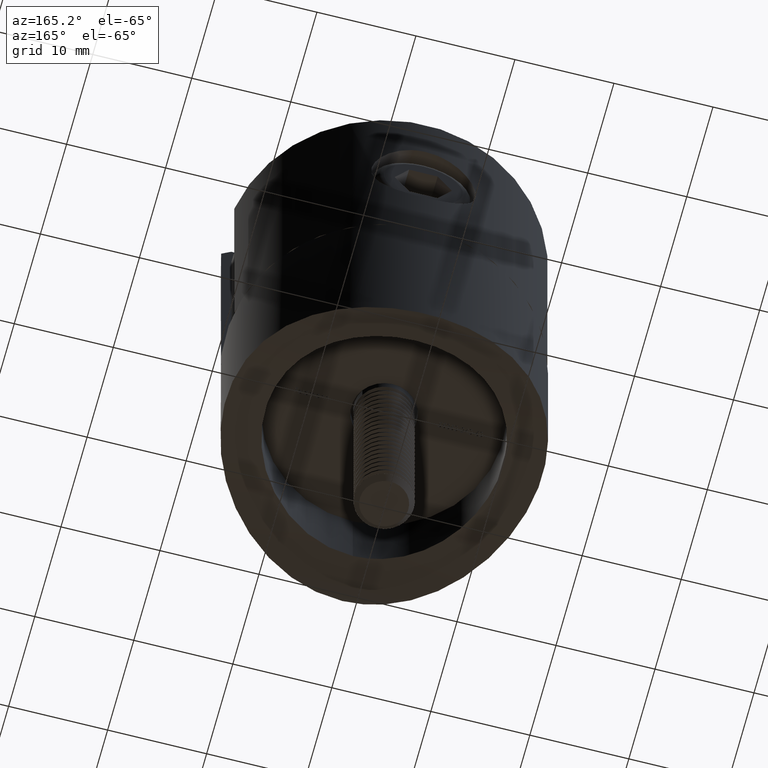
[diagram: clean part render]
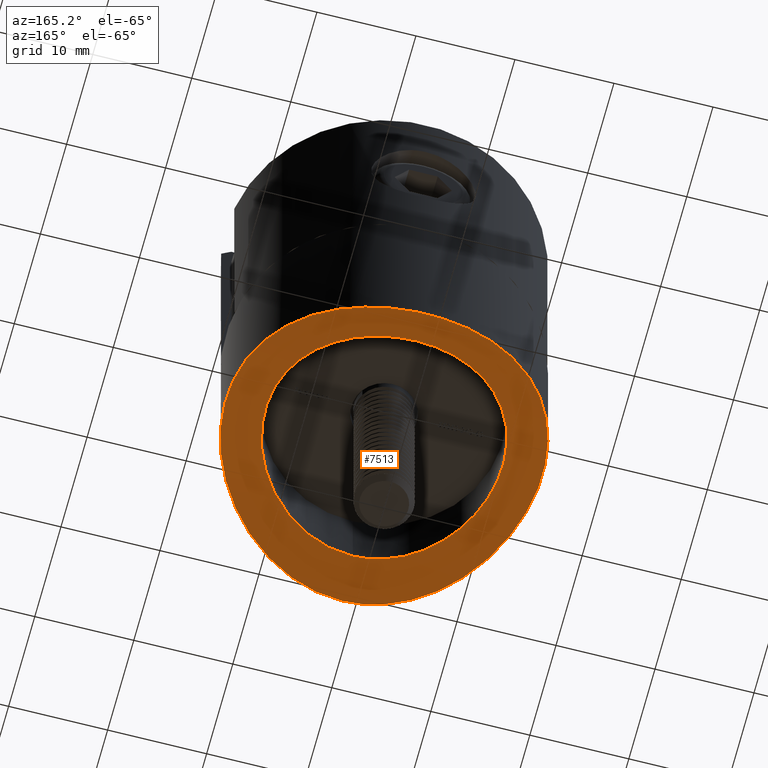
[diagram: same view with one face highlighted and labeled with its STEP entity id]
A machine part, auxiliary view. The second image highlights one B-rep face of the part: STEP entity #7513.
In plain terms, the highlighted cylindrical surface (partial cylindrical patch) has radius 30.15 mm, axis along (1, 0, 0).
Its self-contained STEP definition (entity closure, byte-faithful):
#4 = CARTESIAN_POINT ( 'NONE',  ( 4.987686912832513642, 10.92131578222722155, -2.047090563307750521 ) ) ;
#53 = FACE_OUTER_BOUND ( 'NONE', #1194, .T. ) ;
#77 = CARTESIAN_POINT ( 'NONE',  ( -0.7725920073445992076, 11.98168863400033857, -2.482990585800947336 ) ) ;
#257 = CARTESIAN_POINT ( 'NONE',  ( 4.198435893910748895, -15.44843400711653203, -4.257895014907222553 ) ) ;
#271 = CARTESIAN_POINT ( 'NONE',  ( -7.010991027877740756, -9.746609748862354650, -1.617938087989101659 ) ) ;
#389 = CARTESIAN_POINT ( 'NONE',  ( 2.134750117507572043, -15.89203472333664990, -4.527243523792710000 ) ) ;
#460 = CARTESIAN_POINT ( 'NONE',  ( 8.085586332512241015, 13.84566076334108864, -3.359357152009605496 ) ) ;
#527 = CARTESIAN_POINT ( 'NONE',  ( 12.97348780974006566, -9.378523343156295766, -1.492229447920222940 ) ) ;
#598 = CARTESIAN_POINT ( 'NONE',  ( 14.94273316656973094, -5.743356605367529788, -0.5480243328852349993 ) ) ;
#654 = CARTESIAN_POINT ( 'NONE',  ( 10.59754280818636119, 12.03077421143807335, -2.493298082391059545 ) ) ;
#732 = CARTESIAN_POINT ( 'NONE',  ( 15.88870023188751546, -2.161246617080414101, -0.05945806790660285168 ) ) ;
#1038 = CARTESIAN_POINT ( 'NONE',  ( 11.58754901106626356, -3.144040531877593025, -0.1619639574629034573 ) ) ;
#1162 = CARTESIAN_POINT ( 'NONE',  ( 2.745982449512750723, -11.68822410790023092, -2.357645131477205780 ) ) ;
#1194 = EDGE_LOOP ( 'NONE', ( #13048 ) ) ;
#1304 = CARTESIAN_POINT ( 'NONE',  ( -10.76129999144759353, -5.324383719730294118, -0.4717597106218170966 ) ) ;
#1435 = CARTESIAN_POINT ( 'NONE',  ( 9.753008548260295285, 7.002150436307593928, -0.8225009920806016783 ) ) ;
#1482 = EDGE_CURVE ( 'NONE', #4738, #4738, #19226, .T. ) ;
#1503 = CARTESIAN_POINT ( 'NONE',  ( -10.74784757159861925, 5.351446329594616635, -0.4766383172247924405 ) ) ;
#1571 = CARTESIAN_POINT ( 'NONE',  ( -11.83943307401098366, 1.995884954524046018, -0.06363305351737949533 ) ) ;
#2018 = CARTESIAN_POINT ( 'NONE',  ( 11.68239266804464371, 10.94456769242637328, -2.053888431004975423 ) ) ;
#2090 = CARTESIAN_POINT ( 'NONE',  ( 15.14519074717372149, 5.186800351054912106, -0.4450899824766906820 ) ) ;
#2160 = CARTESIAN_POINT ( 'NONE',  ( -8.032525227709426119, 13.87594563035724349, -3.375231095988488139 ) ) ;
#2226 = CARTESIAN_POINT ( 'NONE',  ( -15.97661758998877524, -1.017952428213681815, -0.01243452599184548257 ) ) ;
#2297 = CARTESIAN_POINT ( 'NONE',  ( 7.179271993898176163, 14.33635146221261536, -3.622562466884024612 ) ) ;
#2551 = CARTESIAN_POINT ( 'NONE',  ( -0.5394925263346930233, -15.99999999999999645, -4.595695078910871700 ) ) ;
#2594 = DIRECTION ( 'NONE',  ( 1.000000000000000000, -0.000000000000000000, -0.000000000000000000 ) ) ;
#2611 = CARTESIAN_POINT ( 'NONE',  ( -1.078560265351375724, -15.97265067711983733, -4.578511928934581476 ) ) ;
#2794 = CARTESIAN_POINT ( 'NONE',  ( 5.345823586510357828, -10.77207880563741504, -1.988139923124309094 ) ) ;
#2926 = CARTESIAN_POINT ( 'NONE',  ( -11.59313387451377864, -3.123250369471831878, -0.1598021065957393183 ) ) ;
#2998 = CARTESIAN_POINT ( 'NONE',  ( 6.030978729205838107, 10.38176652630970231, -1.843096584256991743 ) ) ;
#3040 = AXIS2_PLACEMENT_3D ( 'NONE', #9137, #2594, #7975 ) ;
#3061 = CARTESIAN_POINT ( 'NONE',  ( -11.97958718190897720, 0.8058461534951315564, -0.008141183728603890515 ) ) ;
#3131 = CARTESIAN_POINT ( 'NONE',  ( 3.159256538333493403, 11.60400224174883910, -2.321974353454703266 ) ) ;
#3380 = CARTESIAN_POINT ( 'NONE',  ( 5.707174266713949784, -14.95659738328373045, -3.970310955185019974 ) ) ;
#3395 = CARTESIAN_POINT ( 'NONE',  ( -7.925467415412763117, -9.018829633634375398, -1.379335911693639449 ) ) ;
#3456 = CARTESIAN_POINT ( 'NONE',  ( -1.595708927910922670, -11.90010360617470475, -2.447799461643029417 ) ) ;
#3570 = CARTESIAN_POINT ( 'NONE',  ( 12.99541528851692362, 9.348130625963394280, -1.482288493879623914 ) ) ;
#3600 = ORIENTED_EDGE ( 'NONE', *, *, #1482, .T. ) ;
#3630 = CARTESIAN_POINT ( 'NONE',  ( 13.86164403078854868, 8.057808861475999507, -1.082748097819691946 ) ) ;
#3701 = CARTESIAN_POINT ( 'NONE',  ( 12.02736629144913039, 10.56452989736948211, -1.908315620603530993 ) ) ;
#3759 = CARTESIAN_POINT ( 'NONE',  ( 0.000000000000000000, -12.00000000000000000, -2.490959886503655962 ) ) ;
#3765 = CARTESIAN_POINT ( 'NONE',  ( -15.89843247462603415, -1.819884348102272842, -0.05378485721018724103 ) ) ;
#3834 = CARTESIAN_POINT ( 'NONE',  ( 4.254421522326797600, 15.43296921659310783, -4.248670770076388159 ) ) ;
#3900 = CYLINDRICAL_SURFACE ( 'NONE', #3040, 30.14999999999999147 ) ;
#4405 = CARTESIAN_POINT ( 'NONE',  ( -5.325174507114260436, 10.76088184517494994, -1.985036703094603672 ) ) ;
#4474 = CARTESIAN_POINT ( 'NONE',  ( 6.369058602888113541, 10.17776923945282164, -1.768869877162314586 ) ) ;
#4532 = B_SPLINE_CURVE_WITH_KNOTS ( 'NONE', 3,
 ( #17315, #9630, #389, #7946, #257, #12705, #3380, #4791, #14006, #15840, #14279, #6599, #15583, #18671, #9432, #16162, #527, #16096, #11500, #598, #19130, #11235, #6659, #732, #6850, #8277, #9949, #5121, #13043, #11361, #12846, #2090, #6914, #11300, #3630, #3570, #15971, #3701, #2018, #654, #14547, #460, #2297, #9811, #6715, #3834, #14409, #17512, #5185, #15907, #14610, #5313, #14476, #17643, #19062, #12906, #5378, #8141, #2160, #17450, #9761, #12775, #12975, #18938, #9882, #5248, #16038, #6784, #8400, #17575, #8345, #9690, #14344, #11438, #2226, #3765, #18997, #19200, #8208, #11571, #8742, #8540, #11705, #17848, #16234, #14742, #11766, #19268, #14881, #5513, #16502, #10214, #16296, #14672, #7179, #14819, #16371, #19470, #5652, #2611, #2551, #7114 ),
 .UNSPECIFIED., .T., .F.,
 ( 4, 2, 2, 2, 2, 2, 2, 2, 2, 2, 2, 2, 2, 2, 2, 2, 2, 2, 2, 2, 2, 2, 2, 2, 2, 2, 2, 2, 2, 2, 2, 2, 2, 2, 2, 2, 2, 2, 2, 2, 2, 2, 2, 2, 2, 2, 2, 2, 2, 2, 4 ),
 ( 0.000000000000000000, 0.003184822541556455843, 0.004777233812334682680, 0.006369645083112910819, 0.009554467624669363626, 0.01114687889544759176, 0.01273929016622581817, 0.01433170143700404631, 0.01592411270778227445, 0.01910893524933872725, 0.02070134652011695192, 0.02229375779089517659, 0.02547858033245162940, 0.02707099160322986101, 0.02866340287400808914, 0.03025581414478631034, 0.03184822541556454195, 0.03503304795712099129, 0.03662545922789921943, 0.03821787049867743369, 0.04140269304023387609, 0.04458751558179031849, 0.04617992685256853969, 0.04777233812334676089, 0.05095716066490319635, 0.05254957193568141754, 0.05414198320645963874, 0.05573439447723785301, 0.05732680574801607420, 0.06051162828957250273, 0.06210403956035072393, 0.06369645083112893125, 0.06688127337268537365, 0.06847368464346358097, 0.07006609591424180217, 0.07325091845579825844, 0.07643574099735468697, 0.07802815226813290816, 0.07882435790352201876, 0.07962056353891112936, 0.08280538608046758564, 0.08439779735124582072, 0.08599020862202404192, 0.08758261989280226312, 0.08917503116358049819, 0.09235985370513695447, 0.09395226497591517567, 0.09554467624669339687, 0.09872949878824985315, 0.1003219100590280882, 0.1019143213298062955 ),
 .UNSPECIFIED. ) ;
#4534 = CARTESIAN_POINT ( 'NONE',  ( 3.907981577304573406, 11.37261256764302786, -2.225265224634727090 ) ) ;
#4609 = CARTESIAN_POINT ( 'NONE',  ( -12.00089257511239005, -0.7773802491922248148, 0.0003552535815727270781 ) ) ;
#4670 = CARTESIAN_POINT ( 'NONE',  ( 8.760378726398911908, 8.210150180083301663, -1.137970945690484958 ) ) ;
#4738 = VERTEX_POINT ( 'NONE', #3759 ) ;
#4744 = CARTESIAN_POINT ( 'NONE',  ( -3.140794388474385634, -11.58837293339161434, -2.315710346593852442 ) ) ;
#4791 = CARTESIAN_POINT ( 'NONE',  ( 7.149093687759134674, -14.35189997975213494, -3.630966042357185675 ) ) ;
#4812 = CARTESIAN_POINT ( 'NONE',  ( -2.759505177683312827, -11.68505071777812709, -2.356309104947237554 ) ) ;
#4889 = FACE_BOUND ( 'NONE', #11273, .T. ) ;
#5016 = CARTESIAN_POINT ( 'NONE',  ( -0.4007992488313574242, -12.00000000000000178, -2.490959886503656850 ) ) ;
#5121 = CARTESIAN_POINT ( 'NONE',  ( 15.87059087586888495, 2.100089571375525210, -0.06850774356989051961 ) ) ;
#5185 = CARTESIAN_POINT ( 'NONE',  ( 1.119895356453560975, 15.99612420906701082, -4.593268399023394011 ) ) ;
#5248 = CARTESIAN_POINT ( 'NONE',  ( -13.53669685681009938, 8.545628069589628950, -1.232916720163805602 ) ) ;
#5313 = CARTESIAN_POINT ( 'NONE',  ( -2.082191821999994197, 15.87308406619947476, -4.516594820043247083 ) ) ;
#5378 = CARTESIAN_POINT ( 'NONE',  ( -5.664061859750787242, 14.97315492476320209, -3.979769334319526397 ) ) ;
#5403 = EDGE_CURVE ( 'NONE', #9781, #9781, #4532, .T. ) ;
#5513 = CARTESIAN_POINT ( 'NONE',  ( -10.58561330700593039, -12.04171567547953892, -2.497960455768306609 ) ) ;
#5619 = CARTESIAN_POINT ( 'NONE',  ( 10.77002619710669329, -5.349423699742397176, -0.4694043802146414257 ) ) ;
#5652 = CARTESIAN_POINT ( 'NONE',  ( -2.147999614626995069, -15.86426675125117747, -4.511130830961285199 ) ) ;
#5816 = CARTESIAN_POINT ( 'NONE',  ( 6.031289577702974469, -10.40352440785837729, -1.848033145277831801 ) ) ;
#5942 = CARTESIAN_POINT ( 'NONE',  ( -9.041624641885549707, -7.928105815750510210, -1.055377369242452623 ) ) ;
#6014 = CARTESIAN_POINT ( 'NONE',  ( 0.4114582879468233201, 11.99943249448955918, -2.490713671951069408 ) ) ;
#6076 = CARTESIAN_POINT ( 'NONE',  ( -6.016993118291766862, 10.38989198362836675, -1.846080127120572456 ) ) ;
#6146 = CARTESIAN_POINT ( 'NONE',  ( -11.36312087890710210, -3.877490141077127195, -0.2479644043786713714 ) ) ;
#6213 = CARTESIAN_POINT ( 'NONE',  ( 1.593286608285625627, 11.90034017213795892, -2.447901521585991169 ) ) ;
#6552 = CARTESIAN_POINT ( 'NONE',  ( -8.216674337414616502, -8.754297363609159888, -1.297493442813551168 ) ) ;
#6599 = CARTESIAN_POINT ( 'NONE',  ( 10.55590290750044780, -12.03478540401365748, -2.503771067222689162 ) ) ;
#6659 = CARTESIAN_POINT ( 'NONE',  ( 15.57105657986728353, -3.717881451341324972, -0.2255591916824621901 ) ) ;
#6715 = CARTESIAN_POINT ( 'NONE',  ( 5.258795400126396125, 15.12024180592220013, -4.064876223263797606 ) ) ;
#6784 = CARTESIAN_POINT ( 'NONE',  ( -14.30686514344138871, 7.182235014138724338, -0.8641419574765548672 ) ) ;
#6850 = CARTESIAN_POINT ( 'NONE',  ( 15.99728122124968799, -1.108417108912988391, -0.001442798123056456211 ) ) ;
#6914 = CARTESIAN_POINT ( 'NONE',  ( 14.96390526560158207, 5.688442302517764837, -0.5373328770635649176 ) ) ;
#7114 = CARTESIAN_POINT ( 'NONE',  ( 8.131516293641283255E-16, -16.00000000000000000, -4.595695078910871700 ) ) ;
#7152 = CARTESIAN_POINT ( 'NONE',  ( 3.128395957867937671, -11.59180842415855750, -2.317139047154783249 ) ) ;
#7179 = CARTESIAN_POINT ( 'NONE',  ( -6.681177518968501872, -14.54755792759412181, -3.740828972172310252 ) ) ;
#7284 = CARTESIAN_POINT ( 'NONE',  ( 0.8015984976627152925, -12.00000000000000178, -2.490959886503655962 ) ) ;
#7357 = CARTESIAN_POINT ( 'NONE',  ( 7.320458205167391874, -9.516438573233363840, -1.540080751648394752 ) ) ;
#7421 = CARTESIAN_POINT ( 'NONE',  ( 10.40137761311844322, -6.035582049094263546, -0.6027233715706341588 ) ) ;
#7484 = CARTESIAN_POINT ( 'NONE',  ( -3.127648613264190747, 11.61236876926652073, -2.325481028461541921 ) ) ;
#7513 = ADVANCED_FACE ( 'NONE', ( #4889, #53 ), #3900, .F. ) ;
#7552 = CARTESIAN_POINT ( 'NONE',  ( -1.563203420610715266, 11.90437549801486306, -2.449636889568119980 ) ) ;
#7622 = CARTESIAN_POINT ( 'NONE',  ( -4.966998117550960323, 10.93083981125548121, -2.050791665276563869 ) ) ;
#7690 = CARTESIAN_POINT ( 'NONE',  ( 11.38264105991425978, 3.881273549652584087, -0.2416912853933537719 ) ) ;
#7758 = CARTESIAN_POINT ( 'NONE',  ( -10.38962417867642607, -6.017503546049741914, -0.6044984855176614991 ) ) ;
#7946 = CARTESIAN_POINT ( 'NONE',  ( 3.686522043205399779, -15.57844782553591223, -4.336254773498186665 ) ) ;
#7975 = DIRECTION ( 'NONE',  ( 0.000000000000000000, 0.000000000000000000, -1.000000000000000000 ) ) ;
#8141 = CARTESIAN_POINT ( 'NONE',  ( -7.121600054935708357, 14.36630339599281392, -3.638734607382137831 ) ) ;
#8208 = CARTESIAN_POINT ( 'NONE',  ( -15.74066985114454553, -2.881321613796281600, -0.1368494295909413461 ) ) ;
#8277 = CARTESIAN_POINT ( 'NONE',  ( 16.00128451681657538, 0.4942595994572297480, 0.0006816657416303562207 ) ) ;
#8345 = CARTESIAN_POINT ( 'NONE',  ( -15.45661574893474821, 4.271535702109969357, -0.2853797541556595818 ) ) ;
#8400 = CARTESIAN_POINT ( 'NONE',  ( -14.53249558931382523, 6.713981369416491596, -0.7529754713695376855 ) ) ;
#8540 = CARTESIAN_POINT ( 'NONE',  ( -14.55965570113859009, -6.655489456487617694, -0.7395431068015156928 ) ) ;
#8742 = CARTESIAN_POINT ( 'NONE',  ( -15.17065019282069471, -5.193055833661955667, -0.4338978094890954540 ) ) ;
#8916 = CARTESIAN_POINT ( 'NONE',  ( 8.209219941091024708, -8.761187590991555751, -1.299604186638226633 ) ) ;
#9055 = CARTESIAN_POINT ( 'NONE',  ( 1.988812750522774619, 11.84073757494594581, -2.422274191090122208 ) ) ;
#9117 = CARTESIAN_POINT ( 'NONE',  ( -3.878655975107189846, 11.38302881236338848, -2.229501667646041074 ) ) ;
#9137 = CARTESIAN_POINT ( 'NONE',  ( -16.00000000000000000, 0.000000000000000000, -30.14999999999999858 ) ) ;
#9189 = CARTESIAN_POINT ( 'NONE',  ( -7.922118023854914703, 9.047270923751606020, -1.383671609618073228 ) ) ;
#9257 = CARTESIAN_POINT ( 'NONE',  ( 9.023965994835865700, 7.919669674553743377, -1.057062816436384001 ) ) ;
#9318 = CARTESIAN_POINT ( 'NONE',  ( 12.00047455879498770, 0.3814286852858533305, 0.0001888790028273204416 ) ) ;
#9432 = CARTESIAN_POINT ( 'NONE',  ( 12.00413812324768692, -10.59085670693679049, -1.918202365560836897 ) ) ;
#9451 = CARTESIAN_POINT ( 'NONE',  ( -6.045073760728128853, -10.39512724240349684, -1.844988715706055604 ) ) ;
#9577 = CARTESIAN_POINT ( 'NONE',  ( -7.322687040700333938, -9.514755709804127548, -1.539515491249845436 ) ) ;
#9630 = CARTESIAN_POINT ( 'NONE',  ( 1.078985052669396261, -16.00000000000000000, -4.595695078910870812 ) ) ;
#9690 = CARTESIAN_POINT ( 'NONE',  ( -15.88877283430558940, 2.167921927664983706, -0.05944210888662986025 ) ) ;
#9761 = CARTESIAN_POINT ( 'NONE',  ( -9.734808961894675150, 12.70831711445434031, -2.806802622441028294 ) ) ;
#9781 = VERTEX_POINT ( 'NONE', #11561 ) ;
#9811 = CARTESIAN_POINT ( 'NONE',  ( 5.747963290289715310, 14.94085499280734197, -3.961324853779486066 ) ) ;
#9882 = CARTESIAN_POINT ( 'NONE',  ( -12.66234008736043037, 9.835894829640427162, -1.635275190400068857 ) ) ;
#9949 = CARTESIAN_POINT ( 'NONE',  ( 15.97540495238118297, 1.035600098709676731, -0.01307771160071849459 ) ) ;
#10214 = CARTESIAN_POINT ( 'NONE',  ( -8.513327938293816288, -13.55688562490649218, -3.217931215278059920 ) ) ;
#10253 = CARTESIAN_POINT ( 'NONE',  ( 11.35549526913558793, -3.899873093139224256, -0.2508647882250310546 ) ) ;
#10583 = CARTESIAN_POINT ( 'NONE',  ( 7.339541135919663617, 9.525686989841940289, -1.540632262569246347 ) ) ;
#10652 = CARTESIAN_POINT ( 'NONE',  ( 11.84410175311062829, 1.967939165571273907, -0.06179341162036559865 ) ) ;
#10722 = CARTESIAN_POINT ( 'NONE',  ( -10.37498474843353158, 6.042672977302487425, -0.6096466733266393545 ) ) ;
#10790 = CARTESIAN_POINT ( 'NONE',  ( -9.523131426970083524, 7.342531319289179237, -0.9002776579377663735 ) ) ;
#10989 = CARTESIAN_POINT ( 'NONE',  ( -1.986962083813522684, -11.84091469356128989, -2.422353091785981682 ) ) ;
#11051 = CARTESIAN_POINT ( 'NONE',  ( -5.360375647676651312, -10.76527996336023207, -1.985504278174216264 ) ) ;
#11235 = CARTESIAN_POINT ( 'NONE',  ( 15.43826453734253690, -4.235806142813309805, -0.2946109775501924433 ) ) ;
#11273 = EDGE_LOOP ( 'NONE', ( #3600 ) ) ;
#11300 = CARTESIAN_POINT ( 'NONE',  ( 14.35483286966861094, 7.144656730156513369, -0.8419789125931321783 ) ) ;
#11361 = CARTESIAN_POINT ( 'NONE',  ( 15.58401580869755598, 3.663117889828333418, -0.2188089841075604169 ) ) ;
#11438 = CARTESIAN_POINT ( 'NONE',  ( -16.00148916019686496, -0.4848154086778923011, 0.0007902649415198214657 ) ) ;
#11500 = CARTESIAN_POINT ( 'NONE',  ( 14.33481735883850661, -7.183222788110466439, -0.8517706277689072181 ) ) ;
#11561 = CARTESIAN_POINT ( 'NONE',  ( 0.000000000000000000, -16.00000000000000000, -4.595695078910870812 ) ) ;
#11571 = CARTESIAN_POINT ( 'NONE',  ( -15.47958803394810623, -4.184922935612913619, -0.2734462748832465762 ) ) ;
#11705 = CARTESIAN_POINT ( 'NONE',  ( -14.33191478973646937, -7.132186072379111508, -0.8518883846063125542 ) ) ;
#11766 = CARTESIAN_POINT ( 'NONE',  ( -12.68438386877813251, -9.765989777195494881, -1.622323003073486536 ) ) ;
#11803 = CARTESIAN_POINT ( 'NONE',  ( 11.68601990115150357, -2.755675253195640551, -0.1236716745483719404 ) ) ;
#11935 = CARTESIAN_POINT ( 'NONE',  ( 1.084202172485504434E-16, -12.00000000000000178, -2.490959886503656850 ) ) ;
#12066 = CARTESIAN_POINT ( 'NONE',  ( -10.18578774468800674, -6.356269247478556927, -0.6757576906719906518 ) ) ;
#12132 = CARTESIAN_POINT ( 'NONE',  ( -11.60436651410400977, 3.156201335318160606, -0.1556167876162868058 ) ) ;
#12200 = CARTESIAN_POINT ( 'NONE',  ( 11.61194887860643554, 3.128061193509674265, -0.1526738820396912055 ) ) ;
#12259 = CARTESIAN_POINT ( 'NONE',  ( -11.37397852455902658, 3.905184321878876652, -0.2449736969601700176 ) ) ;
#12322 = CARTESIAN_POINT ( 'NONE',  ( -11.89936628542272423, 1.601555205856367792, -0.03993421053791593872 ) ) ;
#12705 = CARTESIAN_POINT ( 'NONE',  ( 5.211707061231645177, -15.13668017550152456, -4.074415114980068253 ) ) ;
#12775 = CARTESIAN_POINT ( 'NONE',  ( -10.53570657691873791, 12.05266428351795938, -2.511529521724767289 ) ) ;
#12846 = CARTESIAN_POINT ( 'NONE',  ( 15.45464910874660980, 4.175346880858809229, -0.2861245740717265895 ) ) ;
#12906 = CARTESIAN_POINT ( 'NONE',  ( -5.166727558273070287, 15.15196072847016850, -4.083310846030086871 ) ) ;
#12975 = CARTESIAN_POINT ( 'NONE',  ( -10.91713552924337982, 11.70806047007418904, -2.363387267377642598 ) ) ;
#13043 = CARTESIAN_POINT ( 'NONE',  ( 15.79198501390512455, 2.625488663299035075, -0.1100027033371900886 ) ) ;
#13048 = ORIENTED_EDGE ( 'NONE', *, *, #5403, .F. ) ;
#13619 = CARTESIAN_POINT ( 'NONE',  ( -7.319547696991246077, 9.540846597742989488, -1.545728273114332696 ) ) ;
#13681 = CARTESIAN_POINT ( 'NONE',  ( 9.520764116228605189, 7.314928617090807883, -0.8991541823541345790 ) ) ;
#13753 = CARTESIAN_POINT ( 'NONE',  ( 7.936653779931535979, 9.033976556055259621, -1.379575065787953747 ) ) ;
#13823 = CARTESIAN_POINT ( 'NONE',  ( -11.99954205327484580, 0.4091774364429878186, -0.0001822672547847618461 ) ) ;
#13895 = CARTESIAN_POINT ( 'NONE',  ( 5.340302310893996207, 10.75336932627156372, -1.982165412871906618 ) ) ;
#13953 = CARTESIAN_POINT ( 'NONE',  ( -0.8028224684879534667, -11.97974243898414493, -2.482145880089657197 ) ) ;
#14006 = CARTESIAN_POINT ( 'NONE',  ( 8.057680282590142795, -13.86171697003095638, -3.367746590787450423 ) ) ;
#14093 = CARTESIAN_POINT ( 'NONE',  ( -4.266495602272158294, -11.22288889810573842, -2.166144694318081765 ) ) ;
#14279 = CARTESIAN_POINT ( 'NONE',  ( 9.763319736821554073, -12.68624190333083490, -2.796585216935595142 ) ) ;
#14344 = CARTESIAN_POINT ( 'NONE',  ( -15.99681565073991507, 1.110267685650467406, -0.001689865099626592596 ) ) ;
#14409 = CARTESIAN_POINT ( 'NONE',  ( 3.735376321208383477, 15.56694688145358541, -4.329304627602067690 ) ) ;
#14476 = CARTESIAN_POINT ( 'NONE',  ( -2.609758756619656950, 15.79460909800114621, -4.467952993187623179 ) ) ;
#14547 = CARTESIAN_POINT ( 'NONE',  ( 9.807960649354527050, 12.68396374225127587, -2.790213268971612592 ) ) ;
#14610 = CARTESIAN_POINT ( 'NONE',  ( -1.009605479569808395, 15.97720305096802029, -4.581362148901881426 ) ) ;
#14672 = CARTESIAN_POINT ( 'NONE',  ( -7.149616314173311338, -14.32322005133366360, -3.618011655895734702 ) ) ;
#14742 = CARTESIAN_POINT ( 'NONE',  ( -12.99280433940191593, -9.351689605659986526, -1.483467739083009329 ) ) ;
#14819 = CARTESIAN_POINT ( 'NONE',  ( -5.245362431886963606, -15.15138514278004322, -4.079498424652716615 ) ) ;
#14854 = CARTESIAN_POINT ( 'NONE',  ( 3.885978755221510816, -11.36028401606072791, -2.221840045623404425 ) ) ;
#14881 = CARTESIAN_POINT ( 'NONE',  ( -11.67672978000988770, -10.95073116363779420, -2.056265577126583644 ) ) ;
#15134 = CARTESIAN_POINT ( 'NONE',  ( 9.510622080872368045, -7.327955471179088853, -0.9024424288511760928 ) ) ;
#15197 = CARTESIAN_POINT ( 'NONE',  ( -9.533721927396458184, -7.329247513639574940, -0.8968445342130551001 ) ) ;
#15264 = CARTESIAN_POINT ( 'NONE',  ( 10.77293897728124250, 5.345333259755970623, -0.4683789715319751079 ) ) ;
#15333 = CARTESIAN_POINT ( 'NONE',  ( 0.8056490428007376803, 11.97946526555242386, -2.482026307086180328 ) ) ;
#15394 = CARTESIAN_POINT ( 'NONE',  ( -11.69059341228584969, -2.736587100583814269, -0.1218909346384491610 ) ) ;
#15465 = CARTESIAN_POINT ( 'NONE',  ( -9.030589511673481340, 7.941128271429768404, -1.058880358299143065 ) ) ;
#15583 = CARTESIAN_POINT ( 'NONE',  ( 10.93479450630785266, -11.69152105008194553, -2.356429266868935279 ) ) ;
#15840 = CARTESIAN_POINT ( 'NONE',  ( 9.347981288188343285, -12.99552223110337579, -2.942604852742185972 ) ) ;
#15907 = CARTESIAN_POINT ( 'NONE',  ( -0.4747260438797594184, 16.00178658817786115, -4.596813683114286064 ) ) ;
#15971 = CARTESIAN_POINT ( 'NONE',  ( 12.68375825371755106, 9.766734788164997738, -1.622593526303380607 ) ) ;
#16038 = CARTESIAN_POINT ( 'NONE',  ( -13.80984494451973177, 8.096855725481423960, -1.103710935028307416 ) ) ;
#16096 = CARTESIAN_POINT ( 'NONE',  ( 13.84230512970745330, -8.090916690121192190, -1.091995602439714164 ) ) ;
#16162 = CARTESIAN_POINT ( 'NONE',  ( 12.66079018387229205, -9.796426378472894214, -1.632800388713600448 ) ) ;
#16234 = CARTESIAN_POINT ( 'NONE',  ( -13.56919194388549954, -8.493767896086113822, -1.217663812366957865 ) ) ;
#16296 = CARTESIAN_POINT ( 'NONE',  ( -8.066622110606839868, -13.82755415116819897, -3.356348059155455310 ) ) ;
#16371 = CARTESIAN_POINT ( 'NONE',  ( -4.247828937922082382, -15.46254896152112934, -4.265749245710448001 ) ) ;
#16502 = CARTESIAN_POINT ( 'NONE',  ( -9.796220318447430131, -12.69242566255005578, -2.794255844744371498 ) ) ;
#16600 = CARTESIAN_POINT ( 'NONE',  ( 7.004347930114948717, -9.751489814005225298, -1.619595456863456961 ) ) ;
#16673 = CARTESIAN_POINT ( 'NONE',  ( 9.744780998145230910, -7.013805673719167189, -0.8252518053713894242 ) ) ;
#16739 = CARTESIAN_POINT ( 'NONE',  ( 11.99902405958277818, -0.8068032787068162293, -0.0003884337544536892325 ) ) ;
#16797 = CARTESIAN_POINT ( 'NONE',  ( -0.3776622448792254505, 12.00054371023766109, -2.491195777375305731 ) ) ;
#16870 = CARTESIAN_POINT ( 'NONE',  ( 11.92039281358120917, -1.591057539706394630, -0.03193912050580859779 ) ) ;
#16936 = CARTESIAN_POINT ( 'NONE',  ( -10.92932449742696299, -4.970246140903677556, -0.4102433202275850288 ) ) ;
#17011 = CARTESIAN_POINT ( 'NONE',  ( -10.91902633186319527, 4.992927696284299444, -0.4140316499863241906 ) ) ;
#17146 = CARTESIAN_POINT ( 'NONE',  ( 1.084202172485504434E-16, -12.00000000000000178, -2.490959886503656850 ) ) ;
#17315 = CARTESIAN_POINT ( 'NONE',  ( 8.131516293641283255E-16, -16.00000000000000000, -4.595695078910871700 ) ) ;
#17450 = CARTESIAN_POINT ( 'NONE',  ( -9.318566119652702540, 13.01653401029880719, -2.952679422253790431 ) ) ;
#17512 = CARTESIAN_POINT ( 'NONE',  ( 2.172336556728580170, 15.88749318704707392, -4.524375341697302488 ) ) ;
#17575 = CARTESIAN_POINT ( 'NONE',  ( -15.14101137439050149, 5.275762512639045276, -0.4490030845204737719 ) ) ;
#17643 = CARTESIAN_POINT ( 'NONE',  ( -3.648580903510718620, 15.58744285368677041, -4.341690479579437323 ) ) ;
#17848 = CARTESIAN_POINT ( 'NONE',  ( -13.83715886119888872, -8.050148716716391206, -1.090706683784367526 ) ) ;
#18013 = CARTESIAN_POINT ( 'NONE',  ( 4.259792312227457245, -11.22533061249984954, -2.167133119778978489 ) ) ;
#18149 = CARTESIAN_POINT ( 'NONE',  ( 7.922177217439433150, -9.021686072304328619, -1.380237002573107441 ) ) ;
#18281 = CARTESIAN_POINT ( 'NONE',  ( 11.90274655390630265, 1.576064125199729160, -0.03859718639906772886 ) ) ;
#18349 = CARTESIAN_POINT ( 'NONE',  ( -1.960762305534511363, 11.84536764948929566, -2.424255981918765901 ) ) ;
#18417 = CARTESIAN_POINT ( 'NONE',  ( -6.351086464669618792, 10.18894419411740238, -1.772890916868315569 ) ) ;
#18481 = CARTESIAN_POINT ( 'NONE',  ( -11.92434088632173683, -1.563850244955614421, -0.03037443106780517849 ) ) ;
#18549 = CARTESIAN_POINT ( 'NONE',  ( -11.23023498187933811, -4.246799138527589612, -0.2983472626684002815 ) ) ;
#18620 = CARTESIAN_POINT ( 'NONE',  ( -3.893557679914030345, -11.35760473106975432, -2.220752202648602847 ) ) ;
#18671 = CARTESIAN_POINT ( 'NONE',  ( 11.65891275566721852, -10.96955553864558119, -2.063649403195169985 ) ) ;
#18938 = CARTESIAN_POINT ( 'NONE',  ( -12.00722806968189005, 10.62433934989705975, -1.923168405348637533 ) ) ;
#18997 = CARTESIAN_POINT ( 'NONE',  ( -15.86542686692702908, -2.088084433214437485, -0.07121767710406586016 ) ) ;
#19062 = CARTESIAN_POINT ( 'NONE',  ( -4.159834161166363842, 15.45874404116045753, -4.264068878313823419 ) ) ;
#19130 = CARTESIAN_POINT ( 'NONE',  ( 15.12338735573147552, -5.250259088175047495, -0.4562113082828926358 ) ) ;
#19200 = CARTESIAN_POINT ( 'NONE',  ( -15.78656986799467710, -2.618411364351471704, -0.1127370661802067353 ) ) ;
#19226 = B_SPLINE_CURVE_WITH_KNOTS ( 'NONE', 3,
 ( #11935, #7284, #19640, #1162, #7152, #14854, #18013, #2794, #5816, #16600, #7357, #18149, #8916, #19709, #19775, #15134, #16673, #7421, #5619, #19507, #10253, #1038, #11803, #16870, #16739, #9318, #19845, #18281, #10652, #12200, #7690, #15264, #19912, #1435, #13681, #9257, #4670, #13753, #10583, #4474, #2998, #13895, #4, #4534, #3131, #9055, #6213, #15333, #6014, #16797, #77, #7552, #18349, #7484, #9117, #7622, #4405, #6076, #18417, #13619, #9189, #15465, #10790, #19976, #10722, #1503, #17011, #12259, #12132, #1571, #12322, #3061, #13823, #4609, #18481, #15394, #2926, #6146, #18549, #16936, #1304, #7758, #12066, #15197, #5942, #6552, #3395, #9577, #271, #9451, #11051, #14093, #18620, #4744, #4812, #10989, #3456, #13953, #5016, #17146 ),
 .UNSPECIFIED., .T., .F.,
 ( 4, 2, 2, 2, 2, 2, 2, 2, 2, 2, 2, 2, 2, 2, 2, 2, 2, 2, 2, 2, 2, 2, 2, 2, 2, 2, 2, 2, 2, 2, 2, 2, 2, 2, 2, 2, 2, 2, 2, 2, 2, 2, 2, 2, 2, 2, 2, 2, 2, 4 ),
 ( 0.000000000000000000, 0.002368471333373002412, 0.003552707000059504051, 0.004736942666746005691, 0.007105414000119011572, 0.008289649666805514946, 0.009473885333492016586, 0.01065812100017851996, 0.01184235666686502507, 0.01421082800023803182, 0.01539506366692453346, 0.01657929933361103683, 0.01894777066698404358, 0.02013200633367054695, 0.02131624200035705033, 0.02368471333373005708, 0.02605318466710306383, 0.02723742033378956373, 0.02842165600047606711, 0.03079012733384906692, 0.03197436300053557029, 0.03315859866722207366, 0.03552707000059508041, 0.03671130566728157685, 0.03789554133396808022, 0.03907977700065458360, 0.04026401266734108697, 0.04263248400071407984, 0.04381671966740058322, 0.04500095533408708659, 0.04736942666746010028, 0.04973789800083311397, 0.05092213366751961734, 0.05210636933420610684, 0.05447484066757912052, 0.05565907633426562390, 0.05684331200095212727, 0.05921178333432513402, 0.06039601900101163046, 0.06158025466769812689, 0.06276449033438462333, 0.06394872600107112670, 0.06631719733444413345, 0.06750143300113063682, 0.06868566866781714020, 0.07105414000119013307, 0.07223837566787663644, 0.07342261133456313982, 0.07460684700124964319, 0.07579108266793614657 ),
 .UNSPECIFIED. ) ;
#19268 = CARTESIAN_POINT ( 'NONE',  ( -12.02635697232644318, -10.56574126282583670, -1.908753166046716077 ) ) ;
#19470 = CARTESIAN_POINT ( 'NONE',  ( -2.682522744732567244, -15.78251214136437319, -4.460500201789057151 ) ) ;
#19507 = CARTESIAN_POINT ( 'NONE',  ( 11.22186866607503752, -4.268736720951027408, -0.3014944365157370965 ) ) ;
#19640 = CARTESIAN_POINT ( 'NONE',  ( 1.587938052164499680, -11.92050596160316189, -2.456095880916422391 ) ) ;
#19709 = CARTESIAN_POINT ( 'NONE',  ( 8.756549103235499842, -8.214167507932646828, -1.139119304236720032 ) ) ;
#19775 = CARTESIAN_POINT ( 'NONE',  ( 9.016834077157572125, -7.927645739926240331, -1.059262843862519121 ) ) ;
#19845 = CARTESIAN_POINT ( 'NONE',  ( 11.98117456830765803, 0.7815430999042013438, -0.007509261630885251740 ) ) ;
#19912 = CARTESIAN_POINT ( 'NONE',  ( 10.40246812094102680, 6.032727649520537305, -0.6022770373841781488 ) ) ;
#19976 = CARTESIAN_POINT ( 'NONE',  ( -10.17320646849400312, 6.376250444964791875, -0.6800990656788041822 ) ) ;